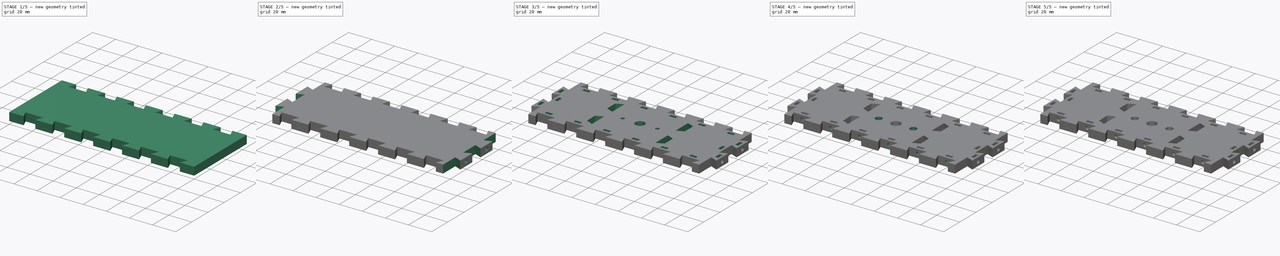
[diagram: build sequence overview — one tinted view per stage of 5, left to right]
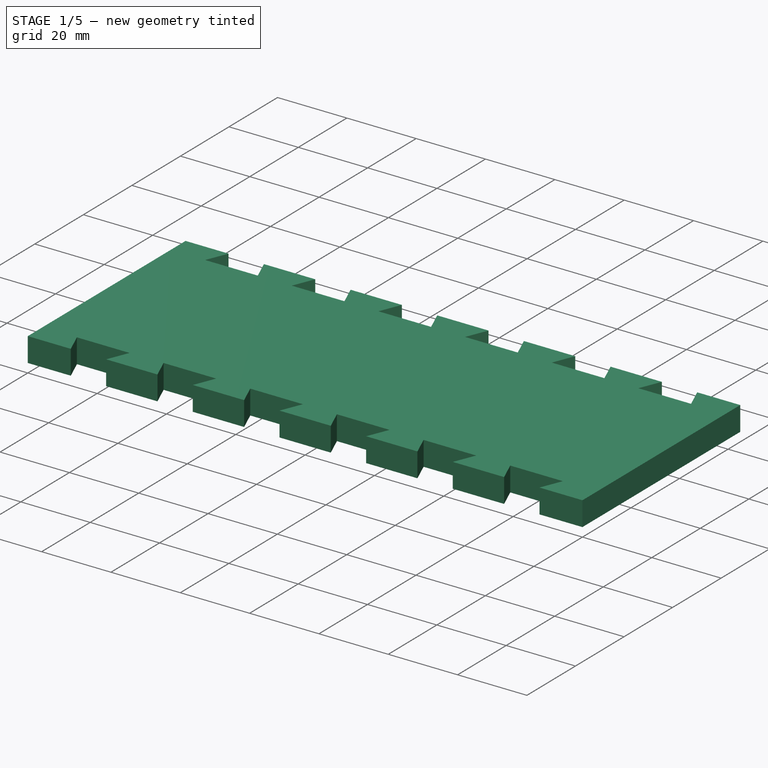
[diagram: stage 1 of 5 — iso view after this stage's code; geometry added in this stage tinted green]
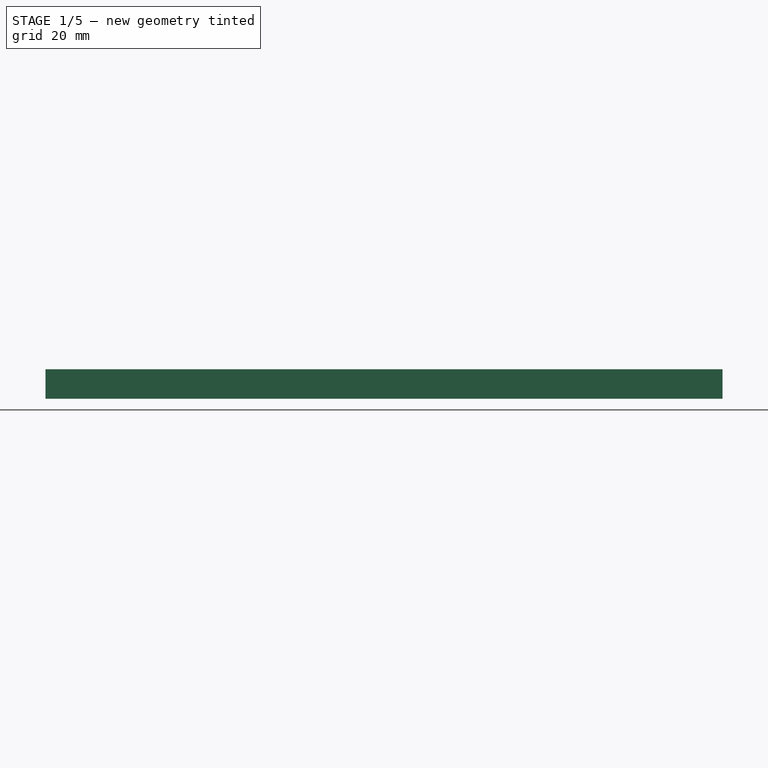
[diagram: stage 1 of 5 — front view after this stage's code; geometry added in this stage tinted green]
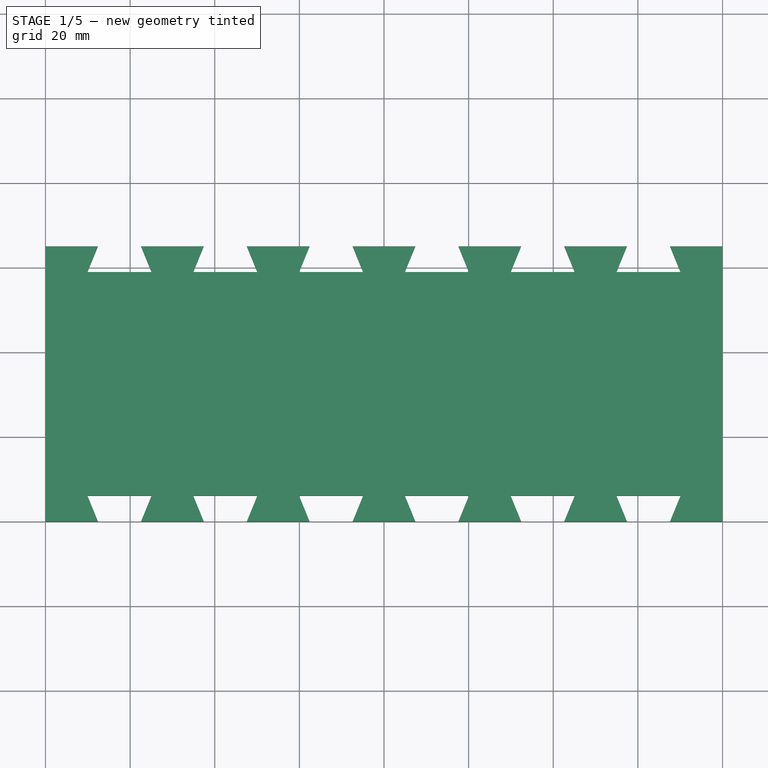
[diagram: stage 1 of 5 — top view after this stage's code; geometry added in this stage tinted green]
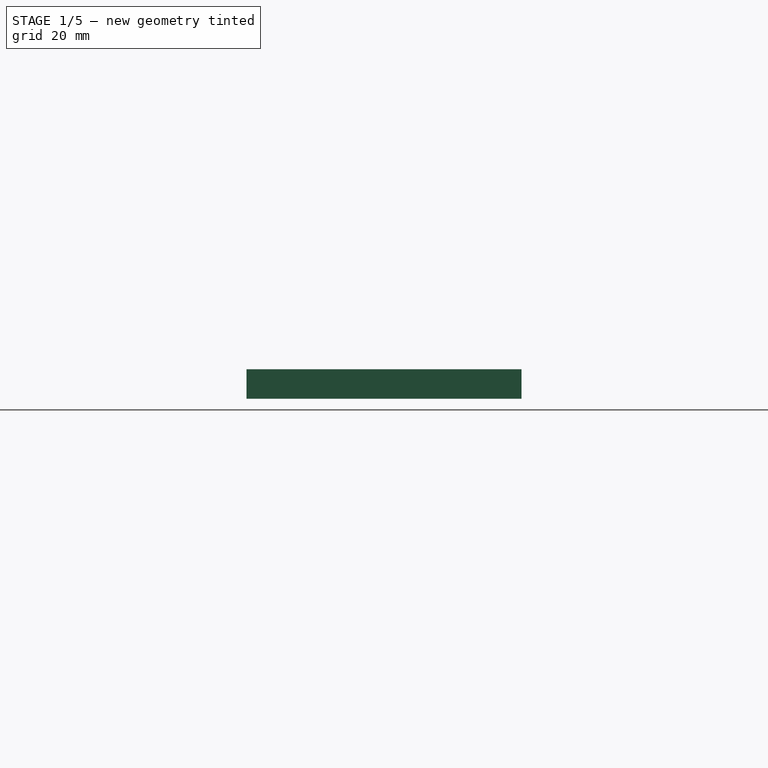
[diagram: stage 1 of 5 — right view after this stage's code; geometry added in this stage tinted green]
FCSTD DOCUMENT  (FreeCAD 0.17R13541 (Git))
Label: cross_beam_v4
License: All rights reserved
LicenseURL: http://en.wikipedia.org/wiki/All_rights_reserved
objects: Sketcher::SketchObject×14, PartDesign::Pocket×13, PartDesign::Pad×1, PartDesign::LinearPattern×1, PartDesign::Body×1
note: 44 computed .brp shape members not serialized (recipe doc carries the construction recipe); baked Part::Feature solids carry a one-line shape summary decoded from their .brp

FEATURE [Sketcher::SketchObject] Sketch
  MapMode = 5
  Support = -> [XY_Plane]
  sketch-geometry (4):
    g0: LineSegment StartX=0 StartY=65 StartZ=0 EndX=160 EndY=65 EndZ=0
    g1: LineSegment StartX=160 StartY=65 StartZ=0 EndX=160 EndY=0 EndZ=0
    g2: LineSegment StartX=160 StartY=0 StartZ=0 EndX=0 EndY=0 EndZ=0
    g3: LineSegment StartX=0 StartY=0 StartZ=0 EndX=0 EndY=65 EndZ=0
  constraints (11):
    c: Coincident(g0,g1)
    c: Coincident(g1,g2)
    c: Coincident(g2,g3)
    c: Coincident(g3,g0)
    c: Horizontal(g0)
    c: Horizontal(g2)
    c: Vertical(g1)
    c: Vertical(g3)
    c: Coincident(g2,g-1)
    c: DistanceX(g0,g0) = 160
    c: DistanceY(g3,g3) = 65
FEATURE [PartDesign::Pad] Pad
  Length = 7
  Length2 = 100
  Profile = -> Sketch
  Type = 0
FEATURE [Sketcher::SketchObject] Sketch001
  MapMode = 5
  Placement = pos=(0,0,7) rot=(0,0,1;0rad)
  Support = -> [Pad]
  sketch-geometry (8):
    g0: LineSegment StartX=12.4 StartY=65 StartZ=0 EndX=22.6 EndY=65 EndZ=0
    g1: LineSegment StartX=9.9 StartY=58.9 StartZ=0 EndX=25.1 EndY=58.9 EndZ=0
    g2: LineSegment StartX=22.6 StartY=65 StartZ=0 EndX=25.1 EndY=58.9 EndZ=0
    g3: LineSegment StartX=12.4 StartY=65 StartZ=0 EndX=9.9 EndY=58.9 EndZ=0
    g4: LineSegment StartX=9.9 StartY=6.1 StartZ=0 EndX=25.1 EndY=6.1 EndZ=0
    g5: LineSegment StartX=12.4 StartY=0 StartZ=0 EndX=22.6 EndY=0 EndZ=0
    g6: LineSegment StartX=22.6 StartY=0 StartZ=0 EndX=25.1 EndY=6.1 EndZ=0
    g7: LineSegment StartX=12.4 StartY=0 StartZ=0 EndX=9.9 EndY=6.1 EndZ=0
  constraints (24):
    c: Horizontal(g0)
    c: Horizontal(g1)
    c: Coincident(g1,g3)
    c: Coincident(g0,g3)
    c: Coincident(g0,g2)
    c: Coincident(g1,g2)
    c: Equal(g3,g2)
    c: DistanceX(g0,g0) = 10.2
    c: DistanceX(g1,g1) = 15.2
    c: DistanceY(g1,g0) = 6.1
    c: DistanceX(g-1,g1) = 9.9
    c: DistanceY(g-1,g0) = 65
    c: Horizontal(g4)
    c: Horizontal(g5)
    c: Coincident(g5,g7)
    c: Coincident(g4,g7)
    c: Coincident(g4,g6)
    c: Coincident(g6,g5)
    c: DistanceX(g5,g5) = 10.2
    c: DistanceX(g4,g4) = 15.2
    c: Equal(g7,g6)
    c: DistanceY(g5,g4) = 6.1
    c: DistanceX(g-1,g4) = 9.9
    c: PointOnObject(g-1,g5)
FEATURE [PartDesign::Pocket] Pocket
  BaseFeature = -> Pad
  Length = 5
  Length2 = 100
  Profile = -> Sketch001
  Type = 1
FEATURE [PartDesign::LinearPattern] LinearPattern
  BaseFeature = -> Pocket
  Direction = -> Sketch001 [H_Axis]
  Length = 125
  Occurrences = 6
  Originals = -> [Pocket]
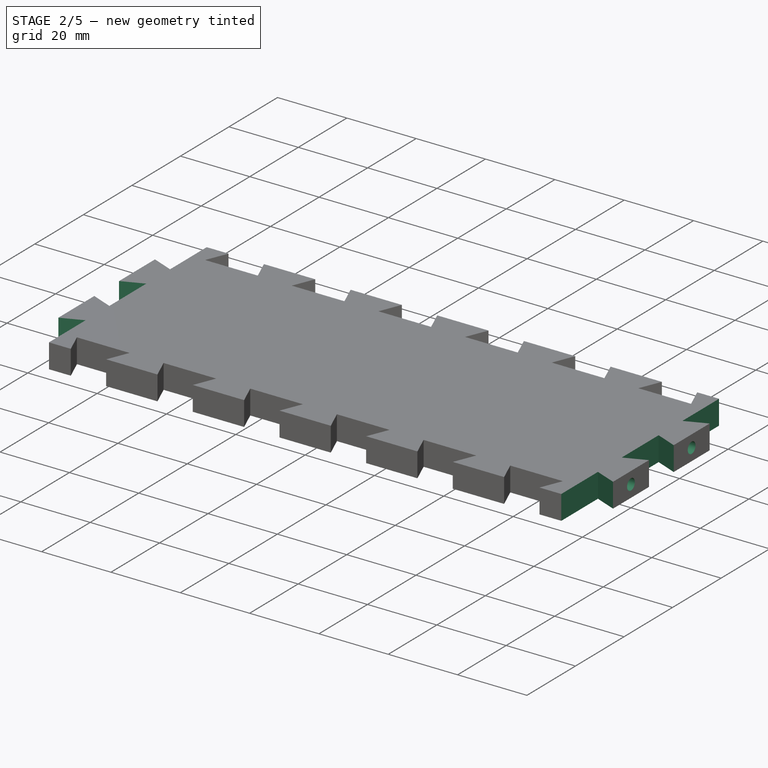
[diagram: stage 2 of 5 — iso view after this stage's code; geometry added in this stage tinted green]
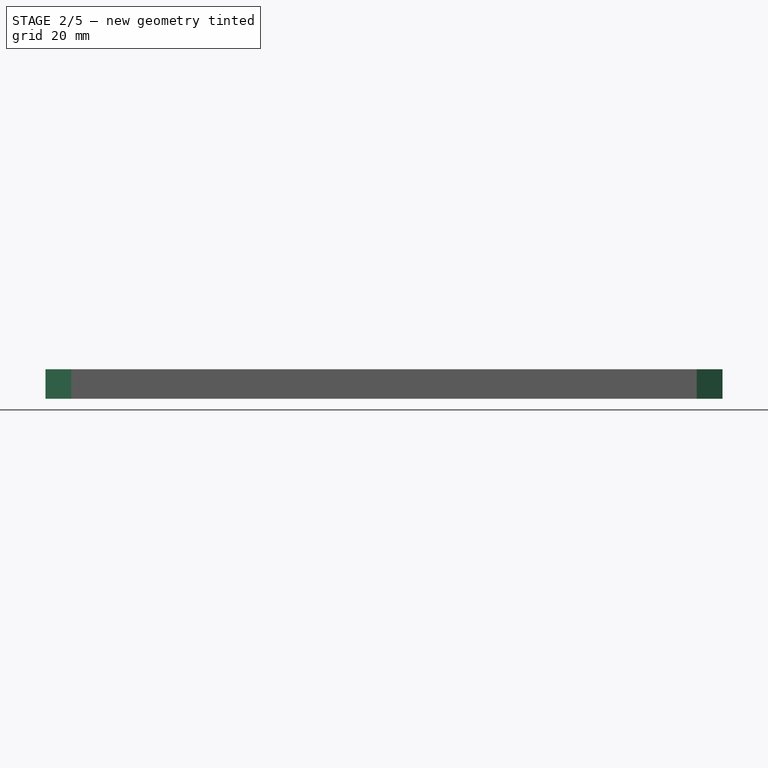
[diagram: stage 2 of 5 — front view after this stage's code; geometry added in this stage tinted green]
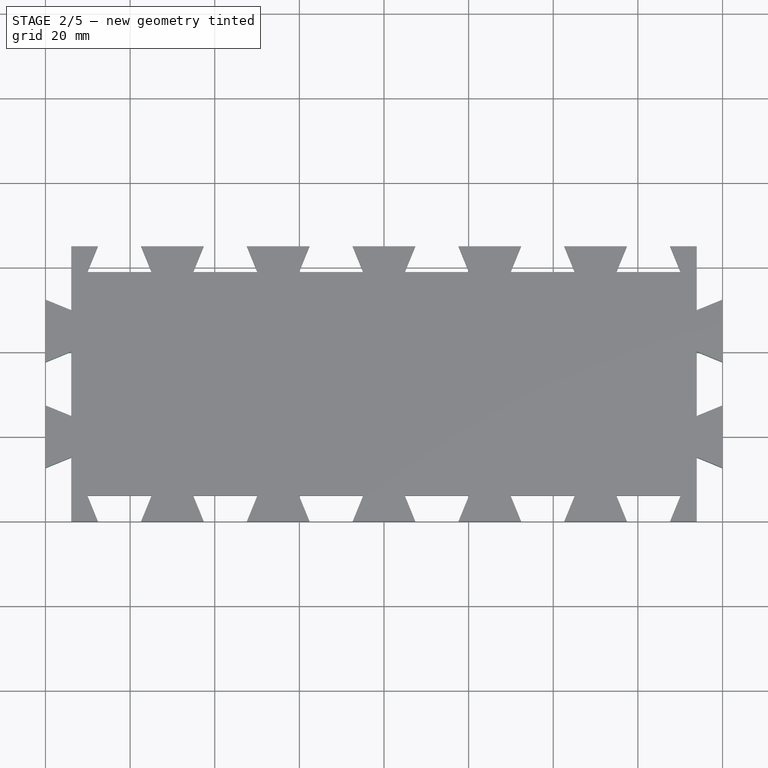
[diagram: stage 2 of 5 — top view after this stage's code; geometry added in this stage tinted green]
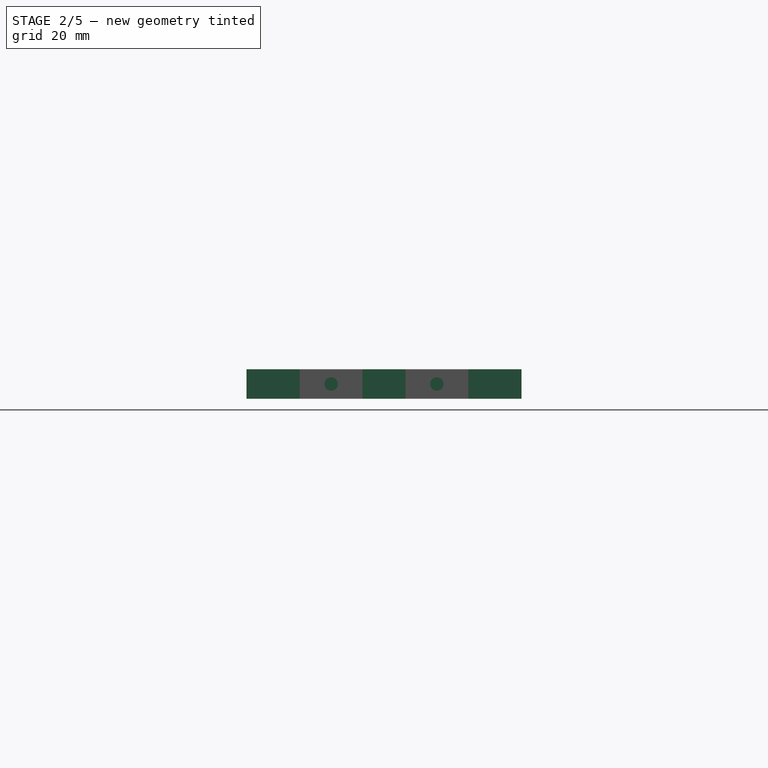
[diagram: stage 2 of 5 — right view after this stage's code; geometry added in this stage tinted green]
FEATURE [Sketcher::SketchObject] Sketch002
  MapMode = 5
  Placement = pos=(0,0,7) rot=(0,0,1;0rad)
  Support = -> [LinearPattern]
  sketch-geometry (24):
    g0: LineSegment StartX=0 StartY=37.6 StartZ=0 EndX=0 EndY=27.4 EndZ=0
    g1: LineSegment StartX=6.1 StartY=40.1 StartZ=0 EndX=6.1 EndY=24.9 EndZ=0
    g2: LineSegment StartX=0 StartY=27.4 StartZ=0 EndX=6.1 EndY=24.9 EndZ=0
    g3: LineSegment StartX=0 StartY=37.6 StartZ=0 EndX=6.1 EndY=40.1 EndZ=0
    g4: LineSegment StartX=0 StartY=12.6 StartZ=0 EndX=6.1 EndY=15.1 EndZ=0
    g5: LineSegment StartX=6.1 StartY=15.1 StartZ=0 EndX=6.1 EndY=0 EndZ=0
    g6: LineSegment StartX=6.1 StartY=0 StartZ=0 EndX=0 EndY=0 EndZ=0
    g7: LineSegment StartX=0 StartY=0 StartZ=0 EndX=0 EndY=12.6 EndZ=0
    g8: LineSegment StartX=0 StartY=65.1 StartZ=0 EndX=6.1 EndY=65.1 EndZ=0
    g9: LineSegment StartX=6.1 StartY=65.1 StartZ=0 EndX=6.1 EndY=49.9 EndZ=0
    g10: LineSegment StartX=6.1 StartY=49.9 StartZ=0 EndX=0 EndY=52.4 EndZ=0
    g11: LineSegment StartX=0 StartY=52.4 StartZ=0 EndX=0 EndY=65.1 EndZ=0
    g12: LineSegment StartX=160 StartY=37.6 StartZ=0 EndX=160 EndY=27.4 EndZ=0
    g13: LineSegment StartX=160 StartY=27.4 StartZ=0 EndX=153.9 EndY=24.9 EndZ=0
    g14: LineSegment StartX=153.9 StartY=24.9 StartZ=0 EndX=153.9 EndY=40.1 EndZ=0
    g15: LineSegment StartX=153.9 StartY=40.1 StartZ=0 EndX=160 EndY=37.6 EndZ=0
    g16: LineSegment StartX=160 StartY=12.6 StartZ=0 EndX=153.9 EndY=15.1 EndZ=0
    g17: LineSegment StartX=153.9 StartY=15.1 StartZ=0 EndX=153.9 EndY=0 EndZ=0
    g18: LineSegment StartX=153.9 StartY=0 StartZ=0 EndX=160 EndY=0 EndZ=0
    g19: LineSegment StartX=160 StartY=0 StartZ=0 EndX=160 EndY=12.6 EndZ=0
    g20: LineSegment StartX=160 StartY=52.4 StartZ=0 EndX=153.9 EndY=49.9 EndZ=0
    g21: LineSegment StartX=153.9 StartY=49.9 StartZ=0 EndX=153.9 EndY=65 EndZ=0
    g22: LineSegment StartX=153.9 StartY=65 StartZ=0 EndX=160 EndY=65 EndZ=0
    g23: LineSegment StartX=160 StartY=65 StartZ=0 EndX=160 EndY=52.4 EndZ=0
  constraints (72):
    c: Vertical(g0)
    c: Vertical(g1)
    c: Coincident(g1,g3)
    c: Coincident(g0,g3)
    c: Coincident(g0,g2)
    c: Coincident(g1,g2)
    c: Equal(g3,g2)
    c: DistanceY(g0,g0) = 10.2
    c: DistanceY(g1,g1) = 15.2
    c: DistanceX(g0,g1) = 6.1
    c: PointOnObject(g-1,g0)
    c: DistanceY(g-1,g1) = 40.1
    c: Coincident(g4,g5)
    c: Coincident(g5,g6)
    c: Coincident(g6,g7)
    c: Vertical(g7)
    c: Coincident(g4,g7)
    c: Vertical(g5)
    c: Horizontal(g6)
    c: DistanceX(g6,g5) = 6.1
    c: DistanceY(g4,g4) = 2.5
    c: PointOnObject(g-1,g6)
    c: PointOnObject(g-1,g7)
    c: DistanceY(g4,g1) = 9.8
    c: Coincident(g8,g9)
    c: Vertical(g9)
    c: Coincident(g9,g10)
    c: PointOnObject(g10,g-2)
    c: Coincident(g10,g11)
    c: Coincident(g8,g11)
    c: Horizontal(g8)
    c: Vertical(g11)
    c: DistanceY(g9,g10) = 2.5
    c: DistanceX(g8,g8) = 6.1
    c: DistanceY(g1,g9) = 9.8
    c: DistanceY(g9,g9) = 15.2
    c: Vertical(g12)
    c: Coincident(g12,g13)
    c: Coincident(g13,g14)
    c: Vertical(g14)
    c: Coincident(g14,g15)
    c: Coincident(g12,g15)
    c: Equal(g13,g15)
    c: DistanceY(g12,g12) = 10.2
    c: DistanceY(g14,g14) = 15.2
    c: DistanceX(g13,g12) = 6.1
    c: DistanceX(g-1,g12) = 160
    c: Coincident(g16,g17)
    c: Vertical(g17)
    c: Coincident(g17,g18)
    c: Coincident(g18,g19)
    c: Coincident(g16,g19)
    c: Vertical(g19)
    c: Horizontal(g18)
    c: DistanceY(g16,g16) = 2.5
    c: DistanceX(g17,g18) = 6.1
    c: DistanceX(g-1,g18) = 160
    c: DistanceY(g16,g13) = 9.8
    c: Coincident(g20,g21)
    c: Coincident(g21,g22)
    c: Horizontal(g22)
    c: Coincident(g22,g23)
    c: Vertical(g23)
    c: Vertical(g21)
    c: Coincident(g20,g23)
    c: DistanceY(g20,g20) = 2.5
    c: DistanceX(g21,g22) = 6.1
    c: DistanceX(g-1,g20) = 160
    c: DistanceY(g17,g17) = 15.1
    c: DistanceY(g14,g20) = 9.8
    c: DistanceY(g21,g21) = 15.1
    c: DistanceY(g-1,g16) = 15.1
FEATURE [PartDesign::Pocket] Pocket001
  BaseFeature = -> LinearPattern
  Length = 5
  Length2 = 100
  Profile = -> Sketch002
  Type = 1
FEATURE [Sketcher::SketchObject] Sketch003
  MapMode = 5
  Placement = pos=(0,0,0) rot=(0.57735,-0.57735,-0.57735;2.0944rad)
  Support = -> [Pocket001]
  sketch-geometry (2):
    g0: Circle CenterX=-45 CenterY=3.5 CenterZ=0 NormalX=0 NormalY=0 NormalZ=1 AngleXU=0 Radius=1.6
    g1: Circle CenterX=-20 CenterY=3.5 CenterZ=0 NormalX=0 NormalY=0 NormalZ=1 AngleXU=0 Radius=1.6
  constraints (6):
    c: Horizontal(g0,g1)
    c: DistanceX(g0,g1) = 25
    c: Equal(g0,g1)
    c: Radius(g1) = 1.6
    c: DistanceX(g1,g-1) = 20
    c: DistanceY(g-1,g1) = 3.5
FEATURE [PartDesign::Pocket] Pocket002
  BaseFeature = -> Pocket001
  Length = 10
  Length2 = 100
  Profile = -> Sketch003
  Type = 0
FEATURE [Sketcher::SketchObject] Sketch004
  MapMode = 5
  Placement = pos=(160,0,0) rot=(0.57735,0.57735,0.57735;2.0944rad)
  Support = -> [Pocket002]
  sketch-geometry (2):
    g0: Circle CenterX=20 CenterY=3.5 CenterZ=0 NormalX=0 NormalY=0 NormalZ=1 AngleXU=0 Radius=1.6
    g1: Circle CenterX=45 CenterY=3.5 CenterZ=0 NormalX=0 NormalY=0 NormalZ=1 AngleXU=0 Radius=1.6
  constraints (6):
    c: Equal(g0,g1)
    c: Radius(g0) = 1.6
    c: Horizontal(g0,g1)
    c: DistanceX(g-1,g0) = 20
    c: DistanceX(g0,g1) = 25
    c: DistanceY(g-1,g0) = 3.5
FEATURE [PartDesign::Pocket] Pocket003
  BaseFeature = -> Pocket002
  Length = 10
  Length2 = 100
  Profile = -> Sketch004
  Type = 0
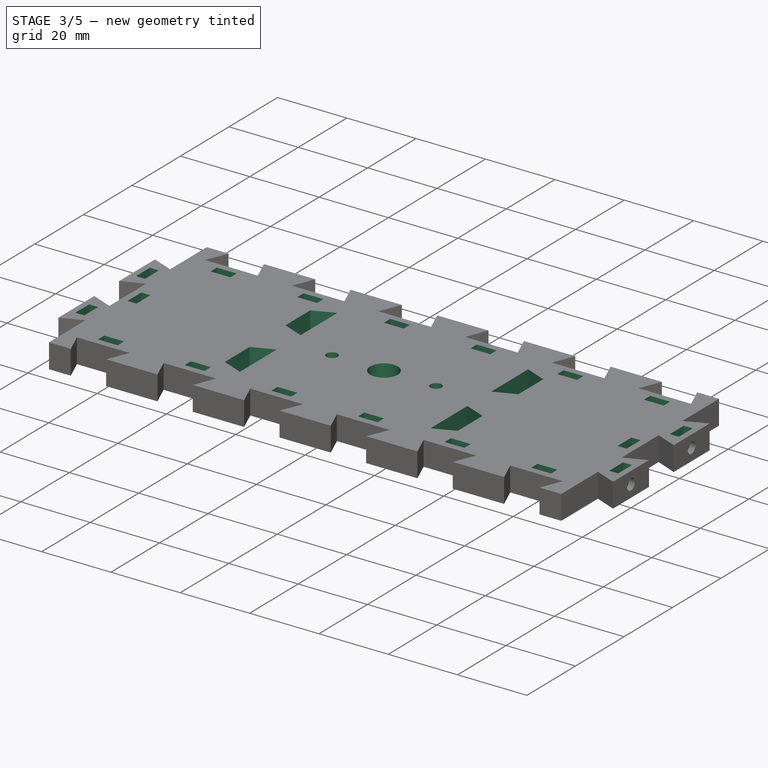
[diagram: stage 3 of 5 — iso view after this stage's code; geometry added in this stage tinted green]
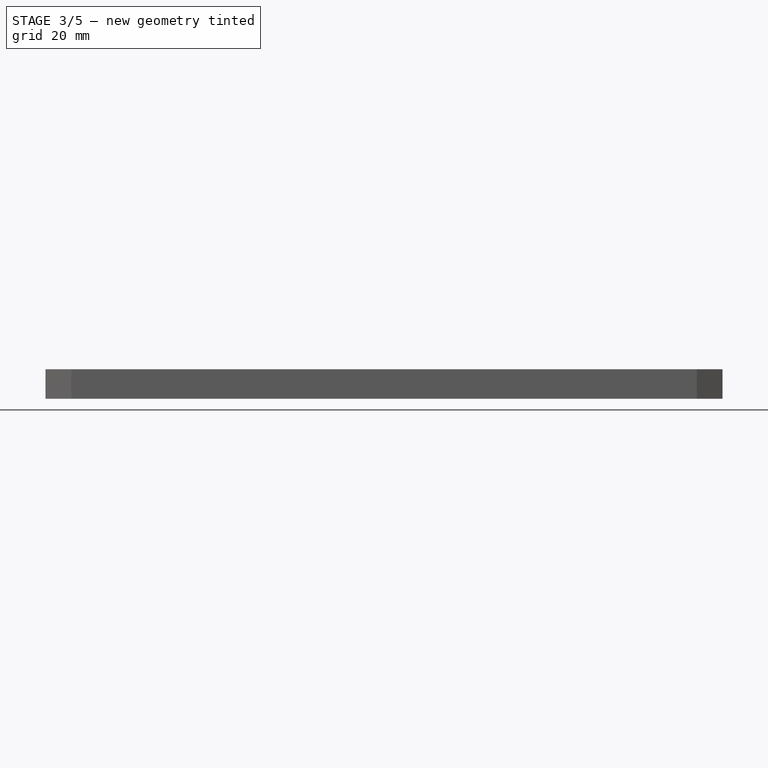
[diagram: stage 3 of 5 — front view after this stage's code; geometry added in this stage tinted green]
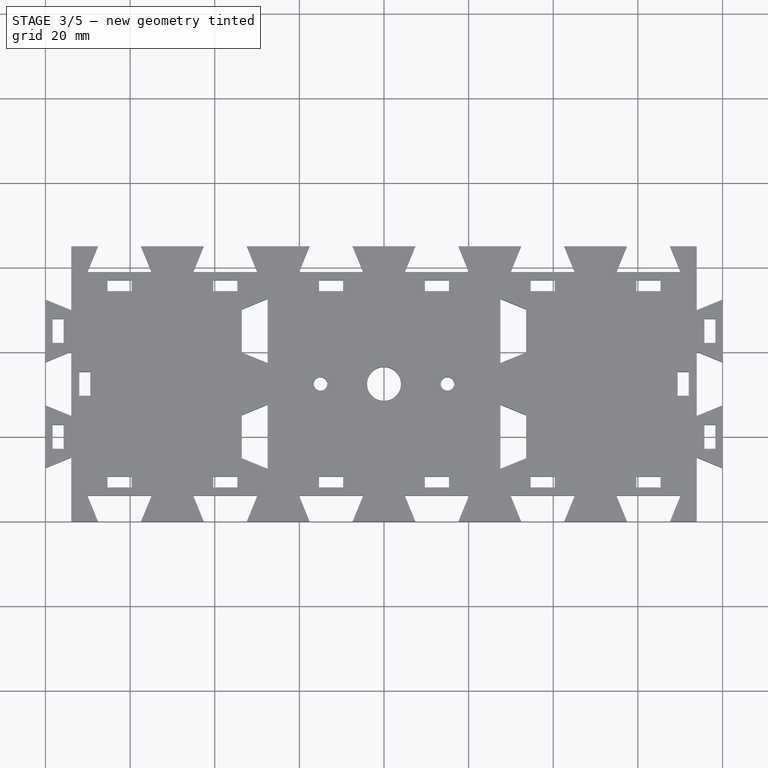
[diagram: stage 3 of 5 — top view after this stage's code; geometry added in this stage tinted green]
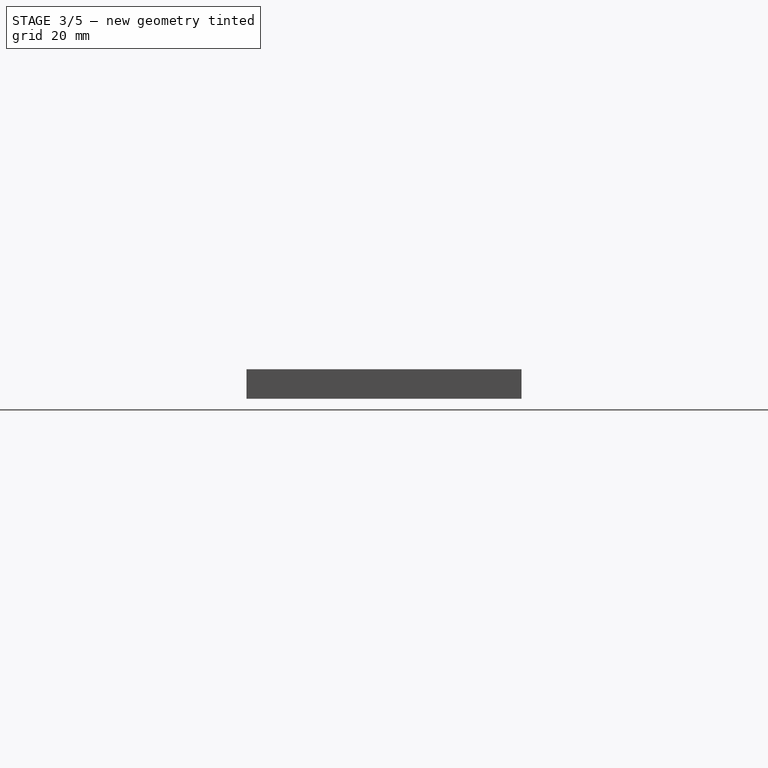
[diagram: stage 3 of 5 — right view after this stage's code; geometry added in this stage tinted green]
FEATURE [Sketcher::SketchObject] Sketch005
  MapMode = 5
  Placement = pos=(0,0,7) rot=(0,0,1;0rad)
  Support = -> [Pocket003]
  sketch-geometry (72):
    g0: LineSegment StartX=1.7 StartY=47.85 StartZ=0 EndX=4.3 EndY=47.85 EndZ=0
    g1: LineSegment StartX=4.3 StartY=47.85 StartZ=0 EndX=4.3 EndY=42.15 EndZ=0
    g2: LineSegment StartX=4.3 StartY=42.15 StartZ=0 EndX=1.7 EndY=42.15 EndZ=0
    g3: LineSegment StartX=1.7 StartY=42.15 StartZ=0 EndX=1.7 EndY=47.85 EndZ=0
    g4: LineSegment StartX=1.7 StartY=22.85 StartZ=0 EndX=4.3 EndY=22.85 EndZ=0
    g5: LineSegment StartX=4.3 StartY=22.85 StartZ=0 EndX=4.3 EndY=17.15 EndZ=0
    g6: LineSegment StartX=4.3 StartY=17.15 StartZ=0 EndX=1.7 EndY=17.15 EndZ=0
    g7: LineSegment StartX=1.7 StartY=17.15 StartZ=0 EndX=1.7 EndY=22.85 EndZ=0
    g8: LineSegment StartX=155.7 StartY=47.85 StartZ=0 EndX=158.3 EndY=47.85 EndZ=0
    g9: LineSegment StartX=158.3 StartY=47.85 StartZ=0 EndX=158.3 EndY=42.15 EndZ=0
    g10: LineSegment StartX=158.3 StartY=42.15 StartZ=0 EndX=155.7 EndY=42.15 EndZ=0
    g11: LineSegment StartX=155.7 StartY=42.15 StartZ=0 EndX=155.7 EndY=47.85 EndZ=0
    g12: LineSegment StartX=155.7 StartY=22.85 StartZ=0 EndX=158.3 EndY=22.85 EndZ=0
    g13: LineSegment StartX=158.3 StartY=22.85 StartZ=0 EndX=158.3 EndY=17.15 EndZ=0
    g14: LineSegment StartX=158.3 StartY=17.15 StartZ=0 EndX=155.7 EndY=17.15 EndZ=0
    g15: LineSegment StartX=155.7 StartY=17.15 StartZ=0 EndX=155.7 EndY=22.85 EndZ=0
    g16: LineSegment StartX=14.65 StartY=10.6 StartZ=0 EndX=20.35 EndY=10.6 EndZ=0
    g17: LineSegment StartX=20.35 StartY=10.6 StartZ=0 EndX=20.35 EndY=8 EndZ=0
    g18: LineSegment StartX=20.35 StartY=8 StartZ=0 EndX=14.65 EndY=8 EndZ=0
    g19: LineSegment StartX=14.65 StartY=8 StartZ=0 EndX=14.65 EndY=10.6 EndZ=0
    g20: LineSegment StartX=39.65 StartY=10.6 StartZ=0 EndX=45.35 EndY=10.6 EndZ=0
    g21: LineSegment StartX=45.35 StartY=10.6 StartZ=0 EndX=45.35 EndY=8 EndZ=0
    g22: LineSegment StartX=45.35 StartY=8 StartZ=0 EndX=39.65 EndY=8 EndZ=0
    g23: LineSegment StartX=39.65 StartY=8 StartZ=0 EndX=39.65 EndY=10.6 EndZ=0
    g24: LineSegment StartX=64.65 StartY=10.6 StartZ=0 EndX=70.35 EndY=10.6 EndZ=0
    g25: LineSegment StartX=70.35 StartY=10.6 StartZ=0 EndX=70.35 EndY=8 EndZ=0
    g26: LineSegment StartX=70.35 StartY=8 StartZ=0 EndX=64.65 EndY=8 EndZ=0
    g27: LineSegment StartX=64.65 StartY=8 StartZ=0 EndX=64.65 EndY=10.6 EndZ=0
    g28: LineSegment StartX=89.65 StartY=10.6 StartZ=0 EndX=95.35 EndY=10.6 EndZ=0
    g29: LineSegment StartX=95.35 StartY=10.6 StartZ=0 EndX=95.35 EndY=8 EndZ=0
    g30: LineSegment StartX=95.35 StartY=8 StartZ=0 EndX=89.65 EndY=8 EndZ=0
    g31: LineSegment StartX=89.65 StartY=8 StartZ=0 EndX=89.65 EndY=10.6 EndZ=0
    g32: LineSegment StartX=114.65 StartY=10.6 StartZ=0 EndX=120.35 EndY=10.6 EndZ=0
    g33: LineSegment StartX=120.35 StartY=10.6 StartZ=0 EndX=120.35 EndY=8 EndZ=0
    g34: LineSegment StartX=120.35 StartY=8 StartZ=0 EndX=114.65 EndY=8 EndZ=0
    g35: LineSegment StartX=114.65 StartY=8 StartZ=0 EndX=114.65 EndY=10.6 EndZ=0
    g36: LineSegment StartX=139.65 StartY=10.6 StartZ=0 EndX=145.35 EndY=10.6 EndZ=0
    g37: LineSegment StartX=145.35 StartY=10.6 StartZ=0 EndX=145.35 EndY=8 EndZ=0
    g38: LineSegment StartX=145.35 StartY=8 StartZ=0 EndX=139.65 EndY=8 EndZ=0
    g39: LineSegment StartX=139.65 StartY=8 StartZ=0 EndX=139.65 EndY=10.6 EndZ=0
    g40: LineSegment StartX=14.65 StartY=57 StartZ=0 EndX=20.35 EndY=57 EndZ=0
    g41: LineSegment StartX=20.35 StartY=57 StartZ=0 EndX=20.35 EndY=54.4 EndZ=0
    g42: LineSegment StartX=20.35 StartY=54.4 StartZ=0 EndX=14.65 EndY=54.4 EndZ=0
    g43: LineSegment StartX=14.65 StartY=54.4 StartZ=0 EndX=14.65 EndY=57 EndZ=0
    g44: LineSegment StartX=39.65 StartY=57 StartZ=0 EndX=45.35 EndY=57 EndZ=0
    g45: LineSegment StartX=45.35 StartY=57 StartZ=0 EndX=45.35 EndY=54.4 EndZ=0
    g46: LineSegment StartX=45.35 StartY=54.4 StartZ=0 EndX=39.65 EndY=54.4 EndZ=0
    g47: LineSegment StartX=39.65 StartY=54.4 StartZ=0 EndX=39.65 EndY=57 EndZ=0
    g48: LineSegment StartX=64.65 StartY=57 StartZ=0 EndX=70.35 EndY=57 EndZ=0
    g49: LineSegment StartX=70.35 StartY=57 StartZ=0 EndX=70.35 EndY=54.4 EndZ=0
    g50: LineSegment StartX=70.35 StartY=54.4 StartZ=0 EndX=64.65 EndY=54.4 EndZ=0
    g51: LineSegment StartX=64.65 StartY=54.4 StartZ=0 EndX=64.65 EndY=57 EndZ=0
    g52: LineSegment StartX=89.65 StartY=57 StartZ=0 EndX=95.35 EndY=57 EndZ=0
    g53: LineSegment StartX=95.35 StartY=57 StartZ=0 EndX=95.35 EndY=54.4 EndZ=0
    g54: LineSegment StartX=95.35 StartY=54.4 StartZ=0 EndX=89.65 EndY=54.4 EndZ=0
    g55: LineSegment StartX=89.65 StartY=54.4 StartZ=0 EndX=89.65 EndY=57 EndZ=0
    g56: LineSegment StartX=114.65 StartY=57 StartZ=0 EndX=120.35 EndY=57 EndZ=0
    g57: LineSegment StartX=120.35 StartY=57 StartZ=0 EndX=120.35 EndY=54.4 EndZ=0
    g58: LineSegment StartX=120.35 StartY=54.4 StartZ=0 EndX=114.65 EndY=54.4 EndZ=0
    g59: LineSegment StartX=114.65 StartY=54.4 StartZ=0 EndX=114.65 EndY=57 EndZ=0
    g60: LineSegment StartX=139.65 StartY=57 StartZ=0 EndX=145.35 EndY=57 EndZ=0
    g61: LineSegment StartX=145.35 StartY=57 StartZ=0 EndX=145.35 EndY=54.4 EndZ=0
    g62: LineSegment StartX=145.35 StartY=54.4 StartZ=0 EndX=139.65 EndY=54.4 EndZ=0
    g63: LineSegment StartX=139.65 StartY=54.4 StartZ=0 EndX=139.65 EndY=57 EndZ=0
    g64: LineSegment StartX=8 StartY=35.35 StartZ=0 EndX=10.6 EndY=35.35 EndZ=0
    g65: LineSegment StartX=10.6 StartY=35.35 StartZ=0 EndX=10.6 EndY=29.65 EndZ=0
    g66: LineSegment StartX=10.6 StartY=29.65 StartZ=0 EndX=8 EndY=29.65 EndZ=0
    g67: LineSegment StartX=8 StartY=29.65 StartZ=0 EndX=8 EndY=35.35 EndZ=0
    g68: LineSegment StartX=149.4 StartY=35.35 StartZ=0 EndX=152 EndY=35.35 EndZ=0
    g69: LineSegment StartX=152 StartY=35.35 StartZ=0 EndX=152 EndY=29.65 EndZ=0
    g70: LineSegment StartX=152 StartY=29.65 StartZ=0 EndX=149.4 EndY=29.65 EndZ=0
    g71: LineSegment StartX=149.4 StartY=29.65 StartZ=0 EndX=149.4 EndY=35.35 EndZ=0
  constraints (216):
    c: Coincident(g0,g1)
    c: Coincident(g1,g2)
    c: Coincident(g2,g3)
    c: Coincident(g3,g0)
    c: Horizontal(g0)
    c: Horizontal(g2)
    c: Vertical(g1)
    c: Vertical(g3)
    c: Coincident(g4,g5)
    c: Coincident(g5,g6)
    c: Coincident(g6,g7)
    c: Coincident(g7,g4)
    c: Horizontal(g4)
    c: Horizontal(g6)
    c: Vertical(g5)
    c: Vertical(g7)
    c: Coincident(g8,g9)
    c: Coincident(g9,g10)
    c: Coincident(g10,g11)
    c: Coincident(g11,g8)
    c: Horizontal(g8)
    c: Horizontal(g10)
    c: Vertical(g9)
    c: Vertical(g11)
    c: Coincident(g12,g13)
    c: Coincident(g13,g14)
    c: Coincident(g14,g15)
    c: Coincident(g15,g12)
    c: Horizontal(g12)
    c: Horizontal(g14)
    c: Vertical(g13)
    c: Vertical(g15)
    c: Equal(g0,g8)
    c: Equal(g8,g12)
    c: Equal(g12,g4)
    c: DistanceX(g0,g0) = 2.6
    c: Equal(g3,g7)
    c: Equal(g7,g15)
    c: Equal(g15,g11)
    c: DistanceY(g3,g3) = 5.7
    c: DistanceX(g-1,g6) = 1.7
    c: DistanceX(g-1,g2) = 1.7
    c: DistanceY(g-1,g6) = 17.15
    c: DistanceY(g4,g0) = 25
    c: DistanceY(g12,g8) = 25
    c: DistanceX(g-1,g13) = 158.3
    c: DistanceX(g-1,g9) = 158.3
    c: DistanceY(g-1,g14) = 17.15
    c: Coincident(g16,g17)
    c: Coincident(g17,g18)
    c: Coincident(g18,g19)
    c: Coincident(g19,g16)
    c: Horizontal(g16)
    c: Horizontal(g18)
    c: Vertical(g17)
    c: Vertical(g19)
    c: DistanceY(g17,g17) = 2.6
    c: DistanceX(g16,g16) = 5.7
    c: Coincident(g20,g21)
    c: Coincident(g21,g22)
    c: Coincident(g22,g23)
    c: Coincident(g23,g20)
    c: Horizontal(g20)
    c: Horizontal(g22)
    c: Vertical(g21)
    c: Vertical(g23)
    c: Equal(g17,g21) = 2.6
    c: Equal(g16,g20) = 5.7
    c: Coincident(g24,g25)
    c: Coincident(g25,g26)
    c: Coincident(g26,g27)
    c: Coincident(g27,g24)
    c: Horizontal(g24)
    c: Horizontal(g26)
    c: Vertical(g25)
    c: Vertical(g27)
    c: Equal(g17,g25) = 2.6
    c: Equal(g16,g24) = 5.7
    c: Coincident(g28,g29)
    c: Coincident(g29,g30)
    c: Coincident(g30,g31)
    c: Coincident(g31,g28)
    c: Horizontal(g28)
    c: Horizontal(g30)
    c: Vertical(g29)
    c: Vertical(g31)
    c: Equal(g17,g29) = 2.6
    c: Equal(g16,g28) = 5.7
    c: Coincident(g32,g33)
    c: Coincident(g33,g34)
    c: Coincident(g34,g35)
    c: Coincident(g35,g32)
    c: Horizontal(g32)
    c: Horizontal(g34)
    c: Vertical(g33)
    c: Vertical(g35)
    c: Equal(g17,g33) = 2.6
    c: Equal(g16,g32) = 5.7
    c: Coincident(g36,g37)
    c: Coincident(g37,g38)
    c: Coincident(g38,g39)
    c: Coincident(g39,g36)
    c: Horizontal(g36)
    c: Horizontal(g38)
    c: Vertical(g37)
    c: Vertical(g39)
    c: Equal(g17,g37) = 2.6
    c: Equal(g16,g36) = 5.7
    c: DistanceX(g18,g22) = 25
    c: Horizontal(g17,g21)
    c: Horizontal(g21,g25)
    c: Horizontal(g25,g29)
    c: Horizontal(g29,g33)
    c: Horizontal(g33,g37)
    c: DistanceX(g22,g26) = 25
    c: DistanceX(g26,g30) = 25
    c: DistanceX(g30,g34) = 25
    c: DistanceX(g34,g38) = 25
    c: DistanceY(g-1,g18) = 8
    c: DistanceX(g-1,g18) = 14.65
    c: Coincident(g40,g41)
    c: Coincident(g41,g42)
    c: Coincident(g42,g43)
    c: Coincident(g43,g40)
    c: Horizontal(g40)
    c: Horizontal(g42)
    c: Vertical(g41)
    c: Vertical(g43)
    c: DistanceX(g40,g40) = 5.7
    c: DistanceY(g41,g41) = 2.6
    c: Coincident(g44,g45)
    c: Coincident(g45,g46)
    c: Coincident(g46,g47)
    c: Coincident(g47,g44)
    c: Horizontal(g44)
    c: Horizontal(g46)
    c: Vertical(g45)
    c: Vertical(g47)
    c: Equal(g40,g44) = 5.7
    c: Equal(g41,g45) = 2.6
    c: Coincident(g48,g49)
    c: Coincident(g49,g50)
    c: Coincident(g50,g51)
    c: Coincident(g51,g48)
    c: Horizontal(g48)
    c: Horizontal(g50)
    c: Vertical(g49)
    c: Vertical(g51)
    c: Equal(g40,g48) = 5.7
    c: Equal(g41,g49) = 2.6
    c: Coincident(g52,g53)
    c: Coincident(g53,g54)
    c: Coincident(g54,g55)
    c: Coincident(g55,g52)
    c: Horizontal(g52)
    c: Horizontal(g54)
    c: Vertical(g53)
    c: Vertical(g55)
    c: Equal(g40,g52) = 5.7
    c: Equal(g41,g53) = 2.6
    c: Coincident(g56,g57)
    c: Coincident(g57,g58)
    c: Coincident(g58,g59)
    c: Coincident(g59,g56)
    c: Horizontal(g56)
    c: Horizontal(g58)
    c: Vertical(g57)
    c: Vertical(g59)
    c: Equal(g40,g56) = 5.7
    c: Equal(g41,g57) = 2.6
    c: Coincident(g60,g61)
    c: Coincident(g61,g62)
    c: Coincident(g62,g63)
    c: Coincident(g63,g60)
    c: Horizontal(g60)
    c: Horizontal(g62)
    c: Vertical(g61)
    c: Vertical(g63)
    c: Equal(g40,g60) = 5.7
    c: Equal(g41,g61) = 2.6
    c: Horizontal(g40,g44)
    c: Horizontal(g44,g48)
    c: Horizontal(g48,g52)
    c: Horizontal(g52,g56)
    c: Horizontal(g56,g60)
    c: DistanceX(g40,g44) = 25
    c: DistanceX(g44,g48) = 25
    c: DistanceX(g48,g52) = 25
    c: DistanceX(g52,g56) = 25
    c: DistanceX(g56,g60) = 25
    c: DistanceX(g-1,g40) = 14.65
    c: DistanceY(g-1,g40) = 57
    c: Coincident(g64,g65)
    c: Coincident(g65,g66)
    c: Coincident(g66,g67)
    c: Coincident(g67,g64)
    c: Horizontal(g64)
    c: Horizontal(g66)
    c: Vertical(g65)
    c: Vertical(g67)
    c: DistanceX(g64,g64) = 2.6
    c: DistanceY(g65,g65) = 5.7
    c: DistanceX(g-1,g66) = 8
    c: DistanceY(g-1,g66) = 29.65
    c: Coincident(g68,g69)
    c: Coincident(g69,g70)
    c: Coincident(g70,g71)
    c: Coincident(g71,g68)
    c: Horizontal(g68)
    c: Horizontal(g70)
    c: Vertical(g69)
    c: Vertical(g71)
    c: DistanceX(g68,g68) = 2.6
    c: DistanceY(g71,g71) = 5.7
    c: DistanceX(g-1,g69) = 152
    c: DistanceY(g-1,g69) = 29.65
FEATURE [PartDesign::Pocket] Pocket004
  BaseFeature = -> Pocket003
  Length = 10
  Length2 = 100
  Profile = -> Sketch005
  Type = 1
FEATURE [Sketcher::SketchObject] Sketch006
  MapMode = 5
  Placement = pos=(0,0,7) rot=(0,0,1;0rad)
  Support = -> [Pocket004]
  sketch-geometry (16):
    g0: LineSegment StartX=46.4 StartY=39.9 StartZ=0 EndX=46.4 EndY=50.1 EndZ=0
    g1: LineSegment StartX=46.4 StartY=50.1 StartZ=0 EndX=52.5 EndY=52.6 EndZ=0
    g2: LineSegment StartX=52.5 StartY=52.6 StartZ=0 EndX=52.5 EndY=37.4 EndZ=0
    g3: LineSegment StartX=52.5 StartY=37.4 StartZ=0 EndX=46.4 EndY=39.9 EndZ=0
    g4: LineSegment StartX=46.4 StartY=25.1 StartZ=0 EndX=46.4 EndY=14.9 EndZ=0
    g5: LineSegment StartX=46.4 StartY=14.9 StartZ=0 EndX=52.5 EndY=12.4 EndZ=0
    g6: LineSegment StartX=52.5 StartY=12.4 StartZ=0 EndX=52.5 EndY=27.6 EndZ=0
    g7: LineSegment StartX=52.5 StartY=27.6 StartZ=0 EndX=46.4 EndY=25.1 EndZ=0
    g8: LineSegment StartX=107.5 StartY=52.6 StartZ=0 EndX=107.5 EndY=37.4 EndZ=0
    g9: LineSegment StartX=107.5 StartY=37.4 StartZ=0 EndX=113.6 EndY=39.9 EndZ=0
    g10: LineSegment StartX=113.6 StartY=39.9 StartZ=0 EndX=113.6 EndY=50.1 EndZ=0
    g11: LineSegment StartX=113.6 StartY=50.1 StartZ=0 EndX=107.5 EndY=52.6 EndZ=0
    g12: LineSegment StartX=107.5 StartY=27.6 StartZ=0 EndX=107.5 EndY=12.4 EndZ=0
    g13: LineSegment StartX=107.5 StartY=12.4 StartZ=0 EndX=113.6 EndY=14.9 EndZ=0
    g14: LineSegment StartX=113.6 StartY=14.9 StartZ=0 EndX=113.6 EndY=25.1 EndZ=0
    g15: LineSegment StartX=113.6 StartY=25.1 StartZ=0 EndX=107.5 EndY=27.6 EndZ=0
  constraints (48):
    c: Vertical(g0)
    c: Coincident(g0,g1)
    c: Coincident(g1,g2)
    c: Vertical(g2)
    c: Coincident(g2,g3)
    c: Vertical(g4)
    c: Coincident(g4,g5)
    c: Coincident(g5,g6)
    c: Vertical(g6)
    c: Coincident(g6,g7)
    c: Coincident(g4,g7)
    c: Coincident(g0,g3)
    c: Equal(g7,g5)
    c: Equal(g1,g3)
    c: Equal(g0,g4)
    c: Equal(g2,g6)
    c: DistanceY(g2,g2) = 15.2
    c: DistanceY(g0,g0) = 10.2
    c: DistanceX(g0,g2) = 6.1
    c: DistanceX(g4,g6) = 6.1
    c: Tangent(g6,g2) = 1.5708
    c: DistanceY(g6,g2) = 9.8
    c: DistanceY(g-1,g5) = 12.4
    c: DistanceX(g-1,g5) = 52.5
    c: Vertical(g8)
    c: Coincident(g8,g9)
    c: Coincident(g9,g10)
    c: Vertical(g10)
    c: Coincident(g10,g11)
    c: Coincident(g11,g8)
    c: Vertical(g12)
    c: Coincident(g12,g13)
    c: Coincident(g13,g14)
    c: Vertical(g14)
    c: Coincident(g14,g15)
    c: Coincident(g15,g12)
    c: Equal(g9,g11)
    c: Equal(g11,g15)
    c: Equal(g15,g13)
    c: DistanceX(g12,g13) = 6.1
    c: Equal(g8,g12)
    c: Equal(g10,g14)
    c: DistanceY(g10,g10) = 10.2
    c: DistanceY(g8,g8) = 15.2
    c: DistanceY(g12,g8) = 9.8
    c: Tangent(g8,g12) = -1.5708
    c: DistanceX(g-1,g12) = 107.5
    c: DistanceY(g-1,g12) = 12.4
FEATURE [PartDesign::Pocket] Pocket005
  BaseFeature = -> Pocket004
  Length = 5
  Length2 = 100
  Profile = -> Sketch006
  Type = 1
FEATURE [Sketcher::SketchObject] Sketch007
  MapMode = 5
  Placement = pos=(0,0,7) rot=(0,0,1;0rad)
  Support = -> [Pocket005]
  sketch-geometry (3):
    g0: Circle CenterX=65 CenterY=32.5 CenterZ=0 NormalX=0 NormalY=0 NormalZ=1 AngleXU=0 Radius=1.6
    g1: Circle CenterX=95 CenterY=32.5 CenterZ=0 NormalX=0 NormalY=0 NormalZ=1 AngleXU=0 Radius=1.6
    g2: Circle CenterX=80 CenterY=32.5 CenterZ=0 NormalX=0 NormalY=0 NormalZ=1 AngleXU=0 Radius=4
  constraints (8):
    c: Horizontal(g0,g1)
    c: Equal(g0,g1)
    c: Radius(g0) = 1.6
    c: DistanceX(g0,g1) = 30
    c: DistanceX(g-1,g0) = 65
    c: DistanceY(g-1,g0) = 32.5
    c: Radius(g2) = 4
    c: Symmetric(g0,g1,g2)
FEATURE [PartDesign::Pocket] Pocket006
  BaseFeature = -> Pocket005
  Length = 5
  Length2 = 100
  Profile = -> Sketch007
  Type = 1
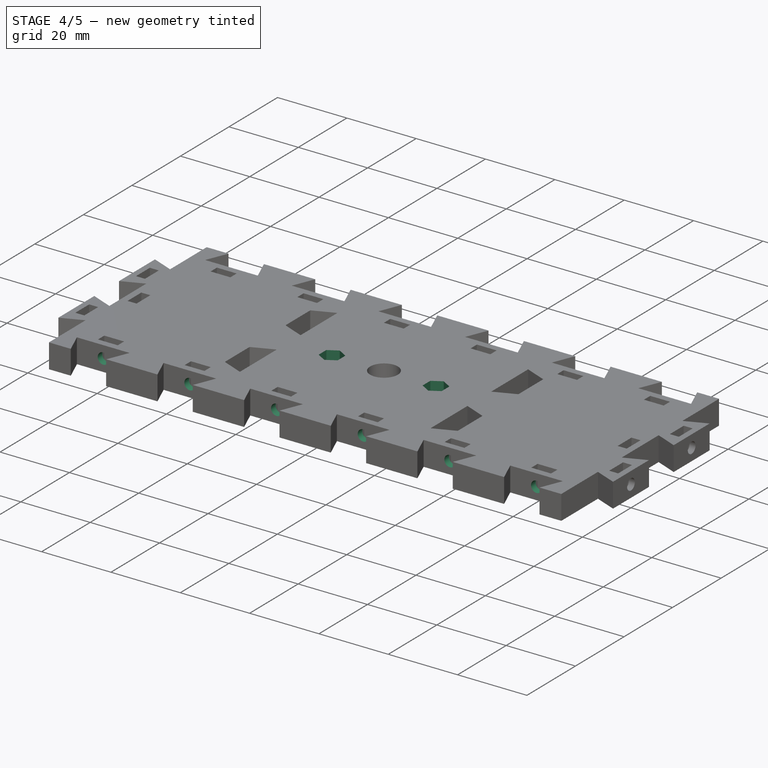
[diagram: stage 4 of 5 — iso view after this stage's code; geometry added in this stage tinted green]
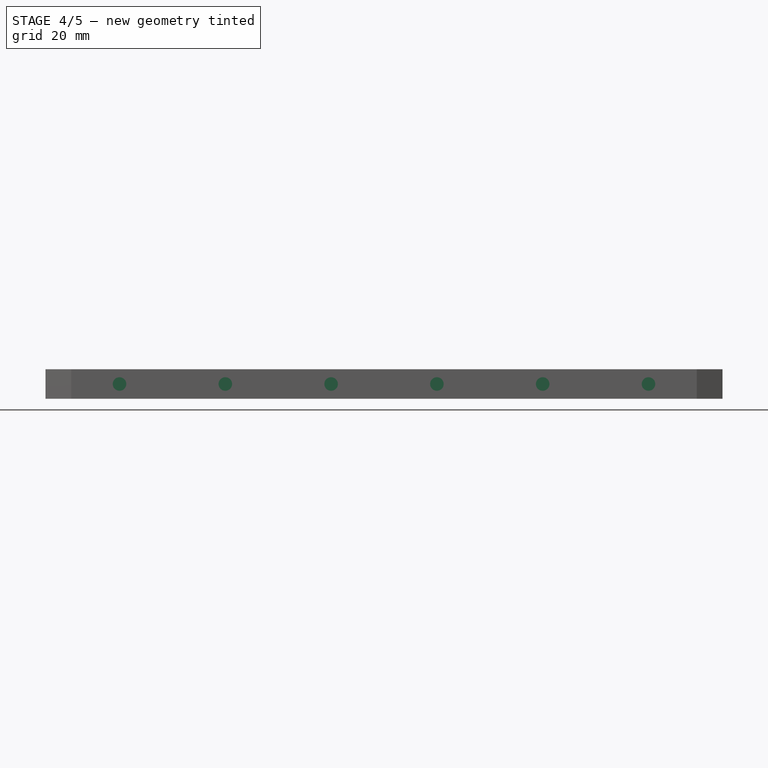
[diagram: stage 4 of 5 — front view after this stage's code; geometry added in this stage tinted green]
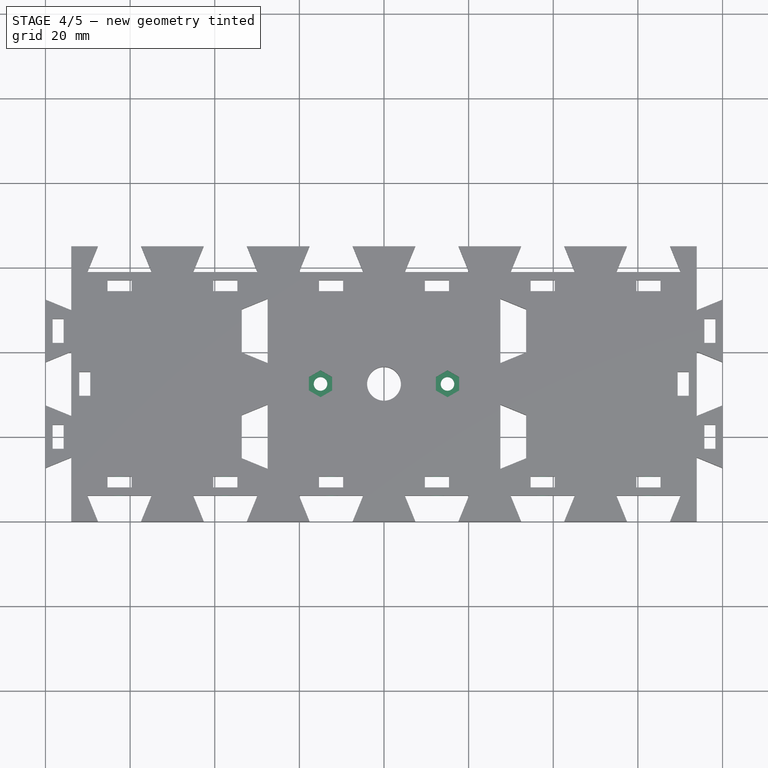
[diagram: stage 4 of 5 — top view after this stage's code; geometry added in this stage tinted green]
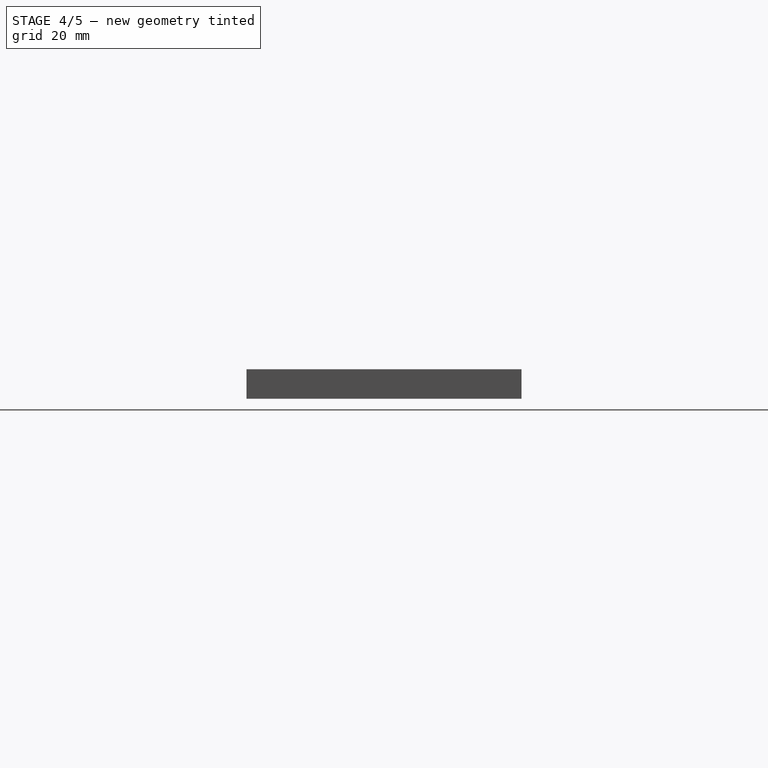
[diagram: stage 4 of 5 — right view after this stage's code; geometry added in this stage tinted green]
FEATURE [Sketcher::SketchObject] Sketch008
  MapMode = 5
  Placement = pos=(0,0,7) rot=(0,0,1;0rad)
  Support = -> [Pocket006]
  sketch-geometry (14):
    g0: LineSegment StartX=67.75 StartY=34.0877 StartZ=0 EndX=65 EndY=35.6754 EndZ=0
    g1: LineSegment StartX=65 StartY=35.6754 StartZ=0 EndX=62.25 EndY=34.0877 EndZ=0
    g2: LineSegment StartX=62.25 StartY=34.0877 StartZ=0 EndX=62.25 EndY=30.9123 EndZ=0
    g3: LineSegment StartX=62.25 StartY=30.9123 StartZ=0 EndX=65 EndY=29.3246 EndZ=0
    g4: LineSegment StartX=65 StartY=29.3246 StartZ=0 EndX=67.75 EndY=30.9123 EndZ=0
    g5: LineSegment StartX=67.75 StartY=30.9123 StartZ=0 EndX=67.75 EndY=34.0877 EndZ=0
    g6: Circle [constr] CenterX=65 CenterY=32.5 CenterZ=0 NormalX=0 NormalY=0 NormalZ=1 AngleXU=0 Radius=3.17543
    g7: LineSegment StartX=95 StartY=35.6754 StartZ=0 EndX=92.25 EndY=34.0877 EndZ=0
    g8: LineSegment StartX=92.25 StartY=34.0877 StartZ=0 EndX=92.25 EndY=30.9123 EndZ=0
    g9: LineSegment StartX=92.25 StartY=30.9123 StartZ=0 EndX=95 EndY=29.3246 EndZ=0
    g10: LineSegment StartX=95 StartY=29.3246 StartZ=0 EndX=97.75 EndY=30.9123 EndZ=0
    g11: LineSegment StartX=97.75 StartY=30.9123 StartZ=0 EndX=97.75 EndY=34.0877 EndZ=0
    g12: LineSegment StartX=97.75 StartY=34.0877 StartZ=0 EndX=95 EndY=35.6754 EndZ=0
    g13: Circle [constr] CenterX=95 CenterY=32.5 CenterZ=0 NormalX=0 NormalY=0 NormalZ=1 AngleXU=0 Radius=3.17543
  constraints (34):
    c: Coincident(g0,g1)
    c: Coincident(g1,g2)
    c: Coincident(g2,g3)
    c: Coincident(g3,g4)
    c: Coincident(g4,g5)
    c: Coincident(g5,g0)
    c: Equal(g0, g1-g5) x5
    c: PointOnObject(g0,g6)
    c: PointOnObject(g1,g6)
    c: PointOnObject(g2,g6)
    c: PointOnObject(g3,g6)
    c: PointOnObject(g4,g6)
    c: PointOnObject(g5,g6)
    c: Coincident(g7,g8)
    c: Coincident(g8,g9)
    c: Coincident(g9,g10)
    c: Coincident(g10,g11)
    c: Coincident(g11,g12)
    c: Coincident(g12,g7)
    c: Equal(g7, g8-g12) x5
    c: PointOnObject(g7,g13)
    c: PointOnObject(g8,g13)
    c: PointOnObject(g9,g13)
    c: PointOnObject(g10,g13)
    c: PointOnObject(g11,g13)
    c: PointOnObject(g12,g13)
    c: Horizontal(g6,g13)
    c: DistanceX(g6,g13) = 30
    c: Vertical(g2)
    c: Vertical(g8)
    c: DistanceX(g1,g0) = 5.5
    c: DistanceX(g7,g11) = 5.5
    c: DistanceX(g-1,g6) = 65
    c: DistanceY(g-1,g6) = 32.5
FEATURE [PartDesign::Pocket] Pocket007
  BaseFeature = -> Pocket006
  Length = 2.7
  Length2 = 100
  Profile = -> Sketch008
  Type = 0
FEATURE [Sketcher::SketchObject] Sketch009
  MapMode = 5
  Placement = pos=(0,0,0) rot=(1,0,0;3.14159rad)
  Support = -> [Pocket007]
  sketch-geometry (14):
    g0: LineSegment StartX=65 StartY=-29.3246 StartZ=0 EndX=62.25 EndY=-30.9123 EndZ=0
    g1: LineSegment StartX=62.25 StartY=-30.9123 StartZ=0 EndX=62.25 EndY=-34.0877 EndZ=0
    g2: LineSegment StartX=62.25 StartY=-34.0877 StartZ=0 EndX=65 EndY=-35.6754 EndZ=0
    g3: LineSegment StartX=65 StartY=-35.6754 StartZ=0 EndX=67.75 EndY=-34.0877 EndZ=0
    g4: LineSegment StartX=67.75 StartY=-34.0877 StartZ=0 EndX=67.75 EndY=-30.9123 EndZ=0
    g5: LineSegment StartX=67.75 StartY=-30.9123 StartZ=0 EndX=65 EndY=-29.3246 EndZ=0
    g6: Circle [constr] CenterX=65 CenterY=-32.5 CenterZ=0 NormalX=0 NormalY=0 NormalZ=1 AngleXU=0 Radius=3.17543
    g7: LineSegment StartX=92.25 StartY=-30.9123 StartZ=0 EndX=92.25 EndY=-34.0877 EndZ=0
    g8: LineSegment StartX=92.25 StartY=-34.0877 StartZ=0 EndX=95 EndY=-35.6754 EndZ=0
    g9: LineSegment StartX=95 StartY=-35.6754 StartZ=0 EndX=97.75 EndY=-34.0877 EndZ=0
    g10: LineSegment StartX=97.75 StartY=-34.0877 StartZ=0 EndX=97.75 EndY=-30.9123 EndZ=0
    g11: LineSegment StartX=97.75 StartY=-30.9123 StartZ=0 EndX=95 EndY=-29.3246 EndZ=0
    g12: LineSegment StartX=95 StartY=-29.3246 StartZ=0 EndX=92.25 EndY=-30.9123 EndZ=0
    g13: Circle [constr] CenterX=95 CenterY=-32.5 CenterZ=0 NormalX=0 NormalY=0 NormalZ=1 AngleXU=0 Radius=3.17543
  constraints (34):
    c: Coincident(g0,g1)
    c: Coincident(g1,g2)
    c: Coincident(g2,g3)
    c: Coincident(g3,g4)
    c: Coincident(g4,g5)
    c: Coincident(g5,g0)
    c: Equal(g0, g1-g5) x5
    c: PointOnObject(g0,g6)
    c: PointOnObject(g1,g6)
    c: PointOnObject(g2,g6)
    c: PointOnObject(g3,g6)
    c: PointOnObject(g4,g6)
    c: PointOnObject(g5,g6)
    c: Coincident(g7,g8)
    c: Coincident(g8,g9)
    c: Coincident(g9,g10)
    c: Coincident(g10,g11)
    c: Coincident(g11,g12)
    c: Coincident(g12,g7)
    c: Equal(g7, g8-g12) x5
    c: PointOnObject(g7,g13)
    c: PointOnObject(g8,g13)
    c: PointOnObject(g9,g13)
    c: PointOnObject(g10,g13)
    c: PointOnObject(g11,g13)
    c: PointOnObject(g12,g13)
    c: Horizontal(g6,g13)
    c: Vertical(g7)
    c: Vertical(g4)
    c: DistanceX(g6,g13) = 30
    c: DistanceX(g0,g4) = 5.5
    c: DistanceX(g7,g10) = 5.5
    c: DistanceX(g-1,g6) = 65
    c: DistanceY(g6,g-1) = 32.5
FEATURE [PartDesign::Pocket] Pocket008
  BaseFeature = -> Pocket007
  Length = 2.7
  Length2 = 100
  Profile = -> Sketch009
  Type = 0
FEATURE [Sketcher::SketchObject] Sketch010
  MapMode = 5
  Placement = pos=(0,6.1,0) rot=(1,0,0;1.5708rad)
  Support = -> [Pocket008]
  sketch-geometry (6):
    g0: Circle CenterX=17.5 CenterY=3.5 CenterZ=0 NormalX=0 NormalY=0 NormalZ=1 AngleXU=0 Radius=1.6
    g1: Circle CenterX=42.5 CenterY=3.5 CenterZ=0 NormalX=0 NormalY=0 NormalZ=1 AngleXU=0 Radius=1.6
    g2: Circle CenterX=67.5 CenterY=3.5 CenterZ=0 NormalX=0 NormalY=0 NormalZ=1 AngleXU=0 Radius=1.6
    g3: Circle CenterX=92.5 CenterY=3.5 CenterZ=0 NormalX=0 NormalY=0 NormalZ=1 AngleXU=0 Radius=1.6
    g4: Circle CenterX=117.5 CenterY=3.5 CenterZ=0 NormalX=0 NormalY=0 NormalZ=1 AngleXU=0 Radius=1.6
    g5: Circle CenterX=142.5 CenterY=3.5 CenterZ=0 NormalX=0 NormalY=0 NormalZ=1 AngleXU=0 Radius=1.6
  constraints (18):
    c: Horizontal(g0,g1)
    c: Horizontal(g1,g2)
    c: Horizontal(g2,g3)
    c: Horizontal(g3,g4)
    c: Horizontal(g4,g5)
    c: Equal(g0,g1)
    c: Equal(g1,g2)
    c: Equal(g2,g3)
    c: Equal(g3,g4)
    c: Equal(g4,g5)
    c: Radius(g0) = 1.6
    c: DistanceX(g0,g1) = 25
    c: DistanceX(g1,g2) = 25
    c: DistanceX(g2,g3) = 25
    c: DistanceX(g3,g4) = 25
    c: DistanceX(g4,g5) = 25
    c: DistanceX(g-1,g0) = 17.5
    c: DistanceY(g-1,g0) = 3.5
FEATURE [PartDesign::Pocket] Pocket009
  BaseFeature = -> Pocket008
  Length = 10
  Length2 = 100
  Profile = -> Sketch010
  Type = 0
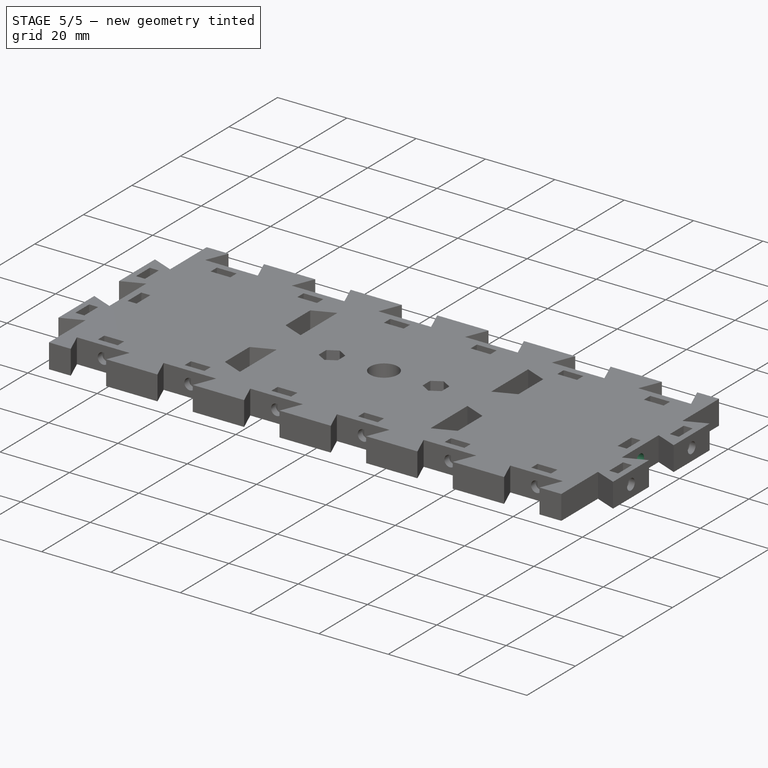
[diagram: stage 5 of 5 — iso view after this stage's code; geometry added in this stage tinted green]
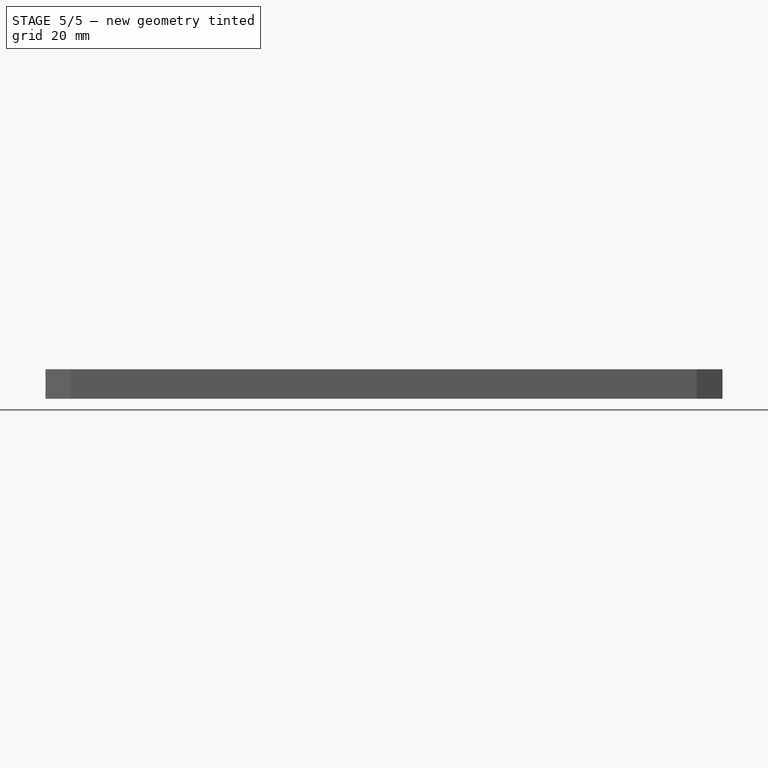
[diagram: stage 5 of 5 — front view after this stage's code; geometry added in this stage tinted green]
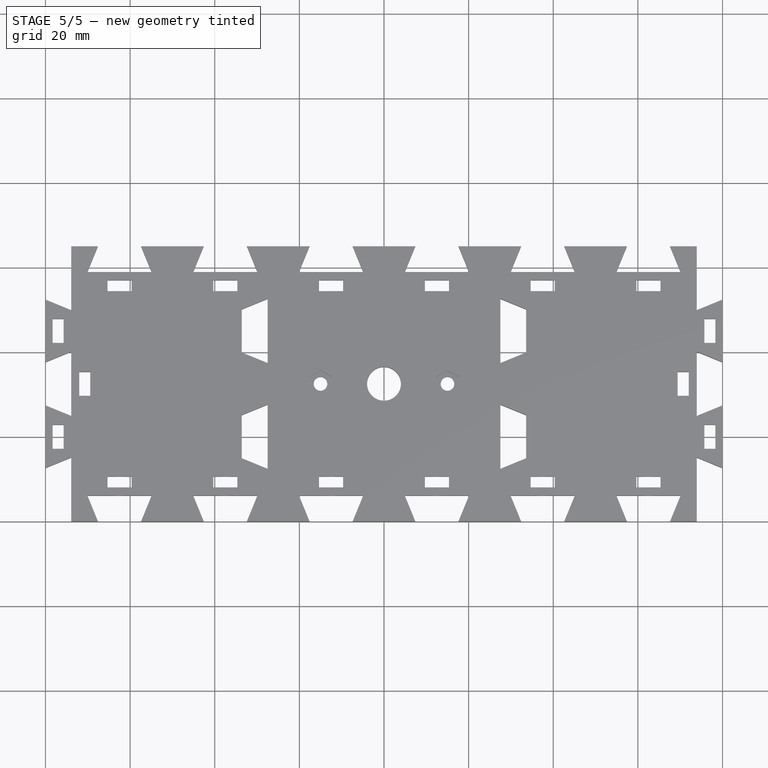
[diagram: stage 5 of 5 — top view after this stage's code; geometry added in this stage tinted green]
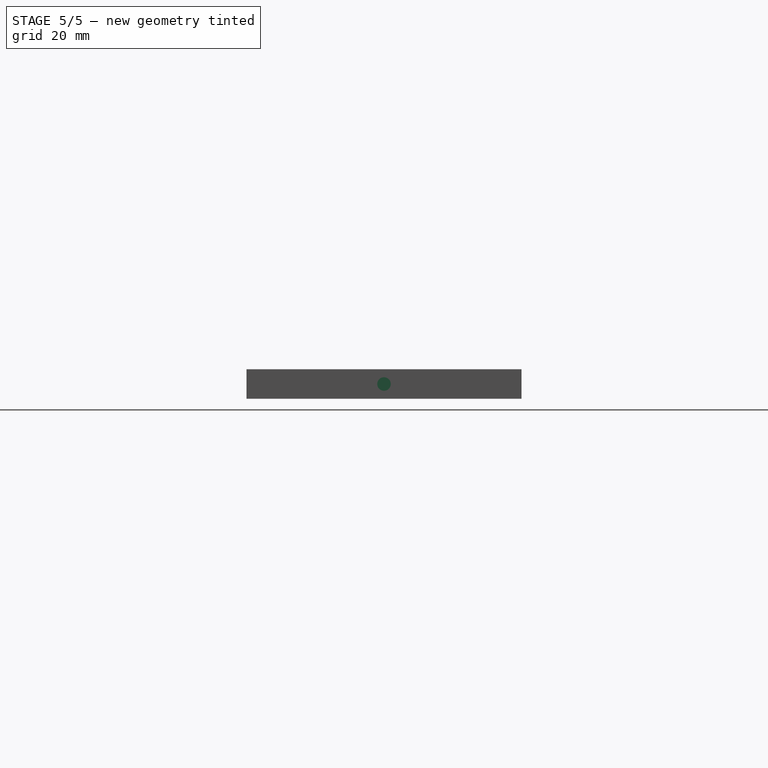
[diagram: stage 5 of 5 — right view after this stage's code; geometry added in this stage tinted green]
FEATURE [Sketcher::SketchObject] Sketch011
  MapMode = 5
  Placement = pos=(0,58.9,0) rot=(0,0.707107,0.707107;3.14159rad)
  Support = -> [Pocket009]
  sketch-geometry (6):
    g0: Circle CenterX=-142.5 CenterY=3.5 CenterZ=0 NormalX=0 NormalY=0 NormalZ=1 AngleXU=0 Radius=1.6
    g1: Circle CenterX=-117.5 CenterY=3.5 CenterZ=0 NormalX=0 NormalY=0 NormalZ=1 AngleXU=0 Radius=1.6
    g2: Circle CenterX=-92.5 CenterY=3.5 CenterZ=0 NormalX=0 NormalY=0 NormalZ=1 AngleXU=0 Radius=1.6
    g3: Circle CenterX=-67.5 CenterY=3.5 CenterZ=0 NormalX=0 NormalY=0 NormalZ=1 AngleXU=0 Radius=1.6
    g4: Circle CenterX=-42.5 CenterY=3.5 CenterZ=0 NormalX=0 NormalY=0 NormalZ=1 AngleXU=0 Radius=1.6
    g5: Circle CenterX=-17.5 CenterY=3.5 CenterZ=0 NormalX=0 NormalY=0 NormalZ=1 AngleXU=0 Radius=1.6
  constraints (18):
    c: Horizontal(g5,g4)
    c: Horizontal(g4,g3)
    c: Horizontal(g3,g2)
    c: Horizontal(g2,g1)
    c: Horizontal(g1,g0)
    c: Equal(g3,g2)
    c: Equal(g2,g1)
    c: Equal(g1,g0)
    c: Equal(g3,g4)
    c: Equal(g4,g5)
    c: Radius(g5) = 1.6
    c: DistanceX(g4,g5) = 25
    c: DistanceX(g3,g4) = 25
    c: DistanceX(g2,g3) = 25
    c: DistanceX(g1,g2) = 25
    c: DistanceX(g0,g1) = 25
    c: DistanceX(g5,g-1) = 17.5
    c: DistanceY(g-1,g5) = 3.5
FEATURE [PartDesign::Pocket] Pocket010
  BaseFeature = -> Pocket009
  Length = 10
  Length2 = 100
  Profile = -> Sketch011
  Type = 0
FEATURE [Sketcher::SketchObject] Sketch012
  MapMode = 5
  Placement = pos=(153.9,0,0) rot=(0.57735,0.57735,0.57735;2.0944rad)
  Support = -> [Pocket010]
  sketch-geometry (1):
    g0: Circle CenterX=32.5 CenterY=3.5 CenterZ=0 NormalX=0 NormalY=0 NormalZ=1 AngleXU=0 Radius=1.6
  constraints (3):
    c: DistanceX(g-1,g0) = 32.5
    c: DistanceY(g-1,g0) = 3.5
    c: Radius(g0) = 1.6
FEATURE [PartDesign::Pocket] Pocket011
  BaseFeature = -> Pocket010
  Length = 10
  Length2 = 100
  Profile = -> Sketch012
  Type = 0
FEATURE [Sketcher::SketchObject] Sketch013
  MapMode = 5
  Placement = pos=(6.1,0,0) rot=(0.57735,-0.57735,-0.57735;2.0944rad)
  Support = -> [Pocket011]
  sketch-geometry (1):
    g0: Circle CenterX=-32.5 CenterY=3.5 CenterZ=0 NormalX=0 NormalY=0 NormalZ=1 AngleXU=0 Radius=1.6
  constraints (3):
    c: Radius(g0) = 1.6
    c: DistanceX(g0,g-1) = 32.5
    c: DistanceY(g-1,g0) = 3.5
FEATURE [PartDesign::Pocket] Pocket012
  BaseFeature = -> Pocket011
  Length = 10
  Length2 = 100
  Profile = -> Sketch013
  Type = 0
FEATURE [PartDesign::Body] Body
  Group = -> [Sketch,Pad,Sketch001,Pocket,LinearPattern,Sketch002,Pocket001,Sketch003,Pocket002,Sketch004,Pocket003,Sketch005,Pocket004,Sketch006,Pocket005,Sketch007,Pocket006,Sketch008,Pocket007,Sketch009,Pocket008,Sketch010,Pocket009,Sketch011,Pocket010,Sketch012,Pocket011,Sketch013,Pocket012]
  Origin = -> Origin
  Tip = -> Pocket012
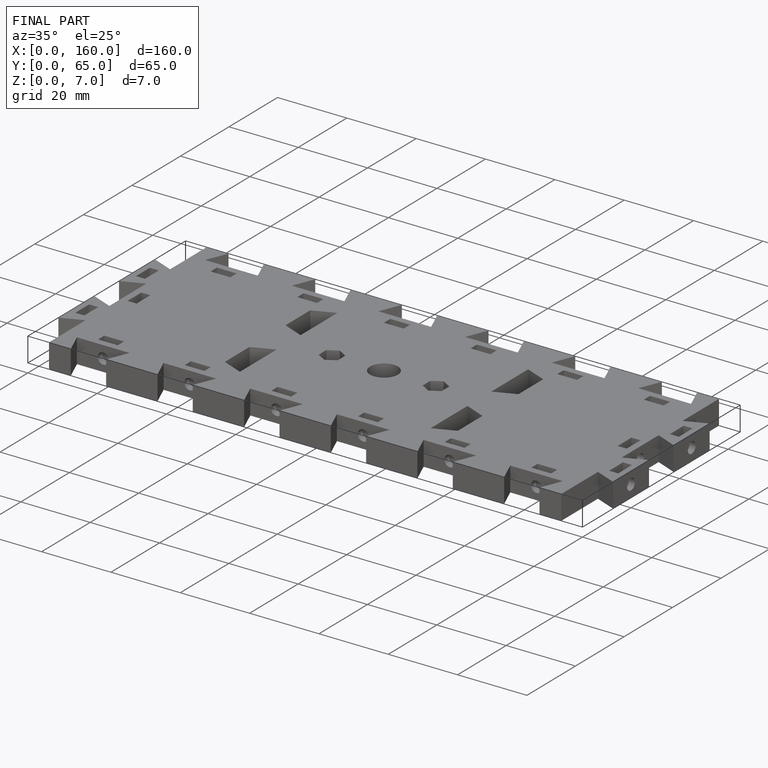
[diagram: finished part — iso view with bounding-box wireframe]
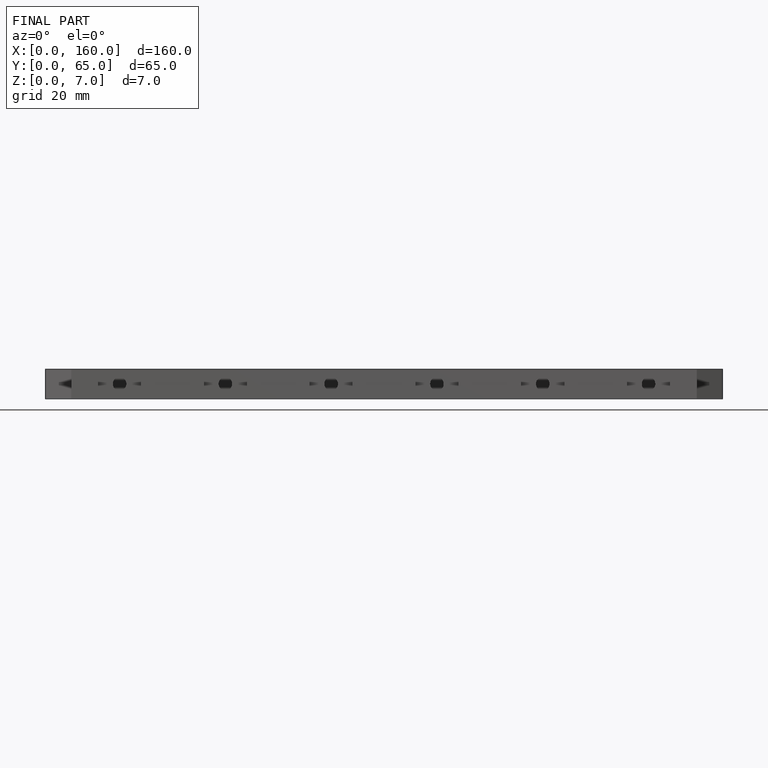
[diagram: finished part — front view with bounding-box wireframe]
